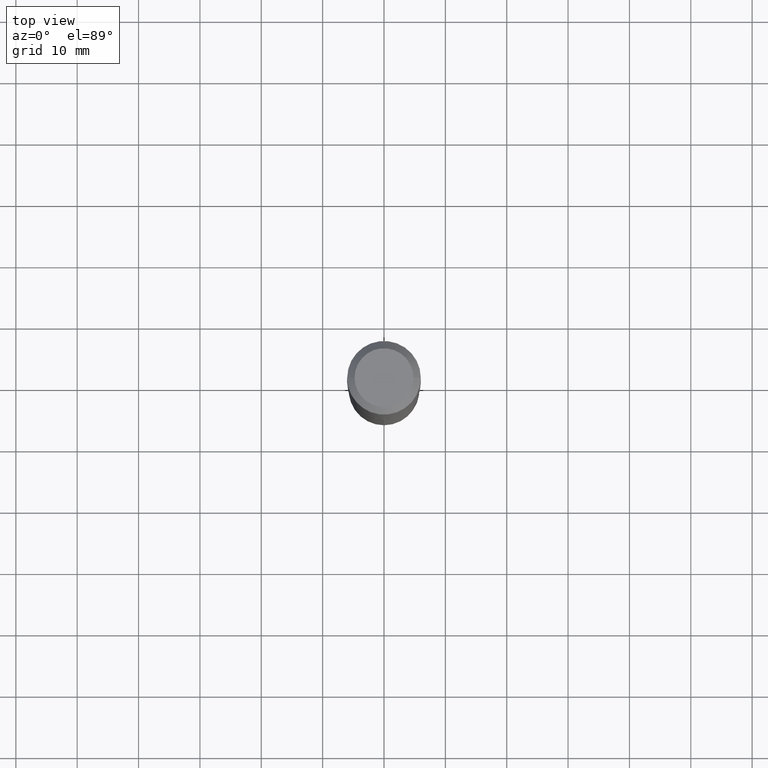
[diagram: clean part render]
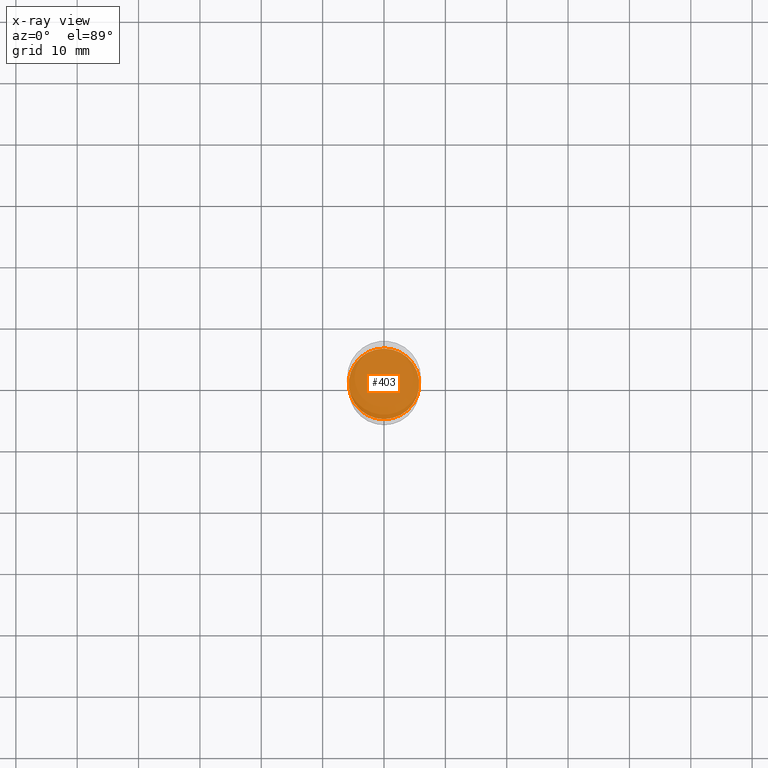
[diagram: x-ray — body ghosted, one internal face saturated and labeled with its STEP entity id]
A machine part, top view, then the same camera in x-ray: the body is ghosted and one INTERNAL B-rep face — a face not visible from any outside direction — is saturated and labeled: STEP entity #403.
In plain terms, the highlighted planar face has unit normal (0, -0, -1).
Its self-contained STEP definition (entity closure, byte-faithful):
#25 = AXIS2_PLACEMENT_3D ( 'NONE', #405, #218, #117 ) ;
#60 = DIRECTION ( 'NONE',  ( -6.982962677686265922E-15, -1.000000000000000000, 3.619939920933211627E-15 ) ) ;
#62 = ORIENTED_EDGE ( 'NONE', *, *, #336, .T. ) ;
#74 = CIRCLE ( 'NONE', #25, 0.2263999999999999624 ) ;
#84 = VERTEX_POINT ( 'NONE', #320 ) ;
#112 = FACE_OUTER_BOUND ( 'NONE', #324, .T. ) ;
#117 = DIRECTION ( 'NONE',  ( -6.982962677686265922E-15, -1.000000000000000000, 3.619939920933211627E-15 ) ) ;
#120 = DIRECTION ( 'NONE',  ( 2.445464056644001555E-29, -3.491488140456377531E-15, -1.000000000000000000 ) ) ;
#158 = DIRECTION ( 'NONE',  ( 6.982962677686265922E-15, 1.000000000000000000, -3.491488140456377531E-15 ) ) ;
#167 = CARTESIAN_POINT ( 'NONE',  ( 5.632403754405604963E-29, -8.041579819623531161E-15, -2.303199999999999470 ) ) ;
#195 = CIRCLE ( 'NONE', #219, 0.2263999999999999624 ) ;
#204 = EDGE_CURVE ( 'NONE', #366, #84, #195, .T. ) ;
#218 = DIRECTION ( 'NONE',  ( -2.445464056644001836E-29, 3.491488140456377926E-15, 1.000000000000000000 ) ) ;
#219 = AXIS2_PLACEMENT_3D ( 'NONE', #167, #472, #60 ) ;
#221 = AXIS2_PLACEMENT_3D ( 'NONE', #347, #120, #158 ) ;
#237 = CARTESIAN_POINT ( 'NONE',  ( 1.608668753760977191E-15, 0.2263999999999919133, -2.303200000000000358 ) ) ;
#307 = PLANE ( 'NONE',  #221 ) ;
#320 = CARTESIAN_POINT ( 'NONE',  ( -1.580942750228114224E-15, -0.2264000000000080115, -2.303199999999998582 ) ) ;
#324 = EDGE_LOOP ( 'NONE', ( #62, #440 ) ) ;
#336 = EDGE_CURVE ( 'NONE', #84, #366, #74, .T. ) ;
#347 = CARTESIAN_POINT ( 'NONE',  ( 5.632403754405604963E-29, -8.041579819623531161E-15, -2.303199999999999470 ) ) ;
#366 = VERTEX_POINT ( 'NONE', #237 ) ;
#403 = ADVANCED_FACE ( 'NONE', ( #112 ), #307, .F. ) ;
#405 = CARTESIAN_POINT ( 'NONE',  ( 5.632403754405604963E-29, -8.041579819623531161E-15, -2.303199999999999470 ) ) ;
#440 = ORIENTED_EDGE ( 'NONE', *, *, #204, .T. ) ;
#472 = DIRECTION ( 'NONE',  ( -2.445464056644001836E-29, 3.491488140456377926E-15, 1.000000000000000000 ) ) ;